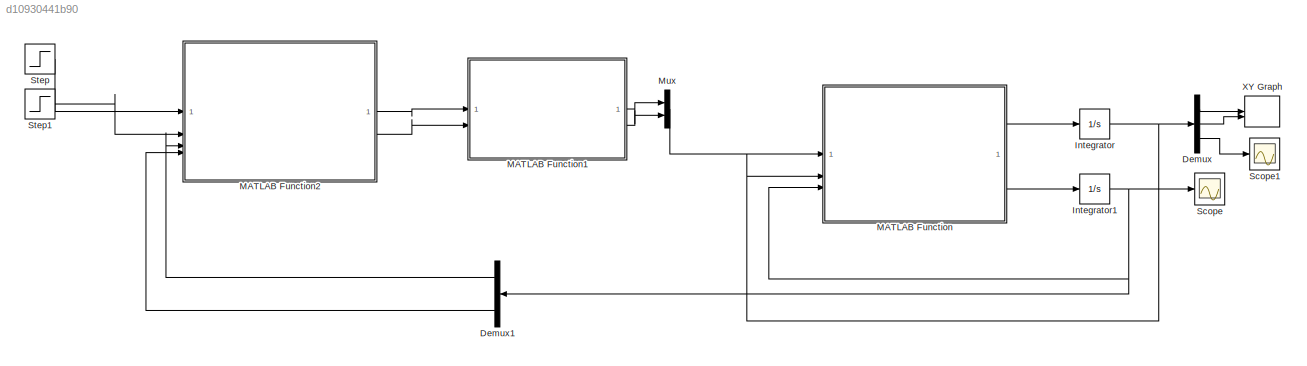
MODEL slx_d10930441b90
KIND model
CONFIG AbsTol = 1e-6
CONFIG EnableMultiTasking = off
CONFIG FixedStep = auto
CONFIG MaxStep = auto
CONFIG MinStep = auto
CONFIG RelTol = 1e-4
CONFIG SampleTimeConstraint = Unconstrained
CONFIG SolverName = ode45
CONFIG StartTime = 0.0
CONFIG StopTime = 1000
BLOCK [Demux] Demux
  Outputs = 3
BLOCK [Demux] Demux1
  NameLocation = top
  Outputs = 3
BLOCK [Integrator] Integrator
  InitialCondition = [0.001; 0.001; 0.001]
BLOCK [Integrator] Integrator1
  InitialCondition = [0.001; 0.001; 0.001]
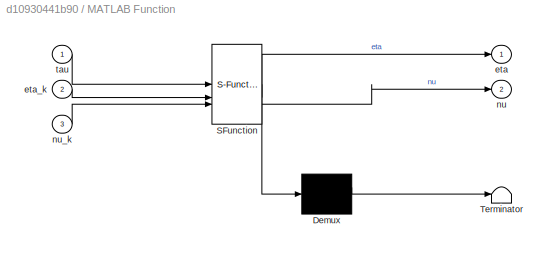
BLOCK [SubSystem] MATLAB Function
  ErrorFcn = Stateflow.Translate.translate
  PermitHierarchicalResolution = ExplicitOnly
  SFBlockType = MATLAB Function
  TreatAsAtomicUnit = on
BLOCK [Demux] MATLAB Function/ Demux 
  Outputs = 1
BLOCK [S-Function] MATLAB Function/ SFunction 
  EnableBusSupport = off
  FunctionName = sf_sfun
  PortCounts = [3 3]
  SFcnIsStateOwnerBlock = off
  SFunctionDeploymentMode = off
  Tag = Stateflow S-Function 2
BLOCK [Terminator] MATLAB Function/ Terminator 
BLOCK [Outport] MATLAB Function/eta
BLOCK [Inport] MATLAB Function/eta_k
  Port = 2
BLOCK [Outport] MATLAB Function/nu
  Port = 2
BLOCK [Inport] MATLAB Function/nu_k
  Port = 3
BLOCK [Inport] MATLAB Function/tau
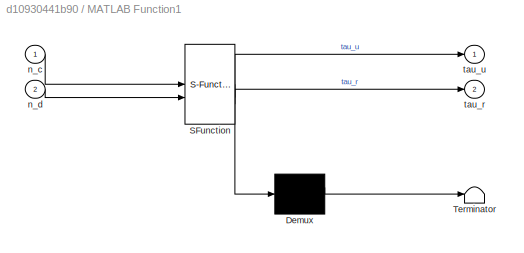
BLOCK [SubSystem] MATLAB Function1
  ErrorFcn = Stateflow.Translate.translate
  PermitHierarchicalResolution = ExplicitOnly
  SFBlockType = MATLAB Function
  TreatAsAtomicUnit = on
BLOCK [Demux] MATLAB Function1/ Demux 
  Outputs = 1
BLOCK [S-Function] MATLAB Function1/ SFunction 
  EnableBusSupport = off
  FunctionName = sf_sfun
  PortCounts = [2 3]
  SFcnIsStateOwnerBlock = off
  SFunctionDeploymentMode = off
  Tag = Stateflow S-Function 1
BLOCK [Terminator] MATLAB Function1/ Terminator 
BLOCK [Inport] MATLAB Function1/n_c
BLOCK [Inport] MATLAB Function1/n_d
  Port = 2
BLOCK [Outport] MATLAB Function1/tau_r
  Port = 2
BLOCK [Outport] MATLAB Function1/tau_u
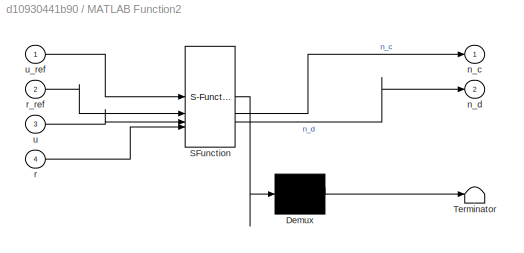
BLOCK [SubSystem] MATLAB Function2
  ErrorFcn = Stateflow.Translate.translate
  PermitHierarchicalResolution = ExplicitOnly
  SFBlockType = MATLAB Function
  TreatAsAtomicUnit = on
BLOCK [Demux] MATLAB Function2/ Demux 
  Outputs = 1
BLOCK [S-Function] MATLAB Function2/ SFunction 
  EnableBusSupport = off
  FunctionName = sf_sfun
  PortCounts = [4 3]
  SFcnIsStateOwnerBlock = off
  SFunctionDeploymentMode = off
  Tag = Stateflow S-Function 3
BLOCK [Terminator] MATLAB Function2/ Terminator 
BLOCK [Outport] MATLAB Function2/n_c
BLOCK [Outport] MATLAB Function2/n_d
  Port = 2
BLOCK [Inport] MATLAB Function2/r
  Port = 4
BLOCK [Inport] MATLAB Function2/r_ref
  Port = 2
BLOCK [Inport] MATLAB Function2/u
  Port = 3
BLOCK [Inport] MATLAB Function2/u_ref
BLOCK [Mux] Mux
  DisplayOption = bar
  Inputs = 2
BLOCK [Scope] Scope
  ActiveDisplayYMaximum = 1.3626376945694334
  ActiveDisplayYMinimum = -0.30627013477746645
  Floating = off
  GraphicalSettings = {"Style":{"BackgroundColor":[0.12941176470588237,0.12941176470588237,0.12941176470588237],"AxesColor":[0.07058823529411765,0.07058823529411765,0.07058823529411765],"LabelsColor":[0.8509803921568627,0.8509803921568627,0.8509803921568627],"PreserveColors":false,"Visible":[true,true,true],"LineStyle":["-","-","-"],"LineWidth":[1.5,1.5,1.5],"BarWidth":[0.9,0.9,0.9],"LineColor":["auto","auto","auto"],"...<+2265ch>
  MultipleDisplayCache = [{"MaxYLimMag":1.3626376945694334,"MaxYLimReal":1.3626376945694334,"MinYLimMag":0,"MinYLimReal":-0.30627013477746645,"PlotAsMagnitudePhase":false,"ShowGrid":true,"ShowLegend":false,"Title":"%<SignalLabel>","YLabel":""}]
  NumInputPorts = 1
  ScopeFrameLocation = window
  Visible = on
  WasSavedAsWebScope = on
  WindowPosition = [496.000000,206.000000,560.000000,420.000000,]
BLOCK [Scope] Scope1
  ActiveDisplayYMaximum = 67.257213810277847
  ActiveDisplayYMinimum = -7.4719126455864258
  DataLoggingVariableName = ScopeData1
  Floating = off
  GraphicalSettings = {"Style":{"BackgroundColor":[0.12941176470588237,0.12941176470588237,0.12941176470588237],"AxesColor":[0.07058823529411765,0.07058823529411765,0.07058823529411765],"LabelsColor":[0.8509803921568627,0.8509803921568627,0.8509803921568627],"PreserveColors":false,"Visible":[true],"LineStyle":["-"],"LineWidth":[1.5],"BarWidth":[0.9],"LineColor":["auto"],"LineFaceAlpha":[1],"LineEdgeAlpha":[1],"Marker":...<+1992ch>
  MultipleDisplayCache = [{"MaxYLimMag":67.257213810277847,"MaxYLimReal":67.257213810277847,"MinYLimMag":0,"MinYLimReal":-7.4719126455864258,"PlotAsMagnitudePhase":false,"ShowGrid":true,"ShowLegend":false,"Title":"%<SignalLabel>","YLabel":""}]
  NumInputPorts = 1
  ScopeFrameLocation = window
  Visible = on
  WasSavedAsWebScope = on
  WindowPosition = [488.000000,222.000000,560.000000,420.000000,]
BLOCK [Step] Step
  After = 2
  SampleTime = 0
BLOCK [Step] Step1
  After = 0.5
  SampleTime = 0
BLOCK [Record] XY Graph
  CompatibilityTag = XY
  FileSettingsInternal = {"entries":[{"content":{"excelSettings":{"content":{},"type":"Streamout.ExcelSettings"},"parquetSettings":{"content":{},"type":"Streamout.ParquetSettings"}},"type":"Streamout.FileSettingStorage","uuid":""}],"packageUris":["http:\/\/schema.mathworks.com\/mf0\/streamout_blocks\/R2020a"],"version":"1.0"}
  FrameSettings = [0, 0]
  Layout = [1 1]
  NumPorts = 2.0
  SignalsInternal = {"entries":[{"content":{"signals":[{"content":{"blockPath":[],"dimensions":[1],"domain":"","lineColor":"#a2142f","plots":[ 1 ],"port":1,"sid":[""],"signalID":1,"signalName":"Demux:1"},"type":"RecordBlkView.Signal","uuid":""},{"content":{"blockPath":[],"dimensions":[1],"domain":"","lineColor":"#139fff","plots":[ 1 ],"port":2,"sid":[""],"signalID":2,"signalName":"Demux:2"},"type":"RecordBlkView.Sign...<+160ch>
  VisualizationBindings = {"xyplotplugin":{"info":[{"series":[{"bindingParametersList":[{"parameter":"X-Axis","signalID":1,"signalName":"Demux:1"},{"parameter":"Y-Axis","signalID":2,"signalName":"Demux:2"}],"seriesID":0}],"subplotID":1}]}}
LINE Demux1:1 -> MATLAB Function2:3
LINE Demux1:3 -> MATLAB Function2:4
LINE Demux:1 -> XY Graph:1
LINE Demux:2 -> XY Graph:2
LINE Demux:3 -> Scope1:1
NET Integrator1:1 -> Demux1:1, MATLAB Function:3, Scope:1
NET Integrator:1 -> Demux:1, MATLAB Function:2
LINE MATLAB Function1:1 -> Mux:1
LINE MATLAB Function1:2 -> Mux:2
LINE MATLAB Function2:1 -> MATLAB Function1:1
LINE MATLAB Function2:2 -> MATLAB Function1:2
LINE MATLAB Function:1 -> Integrator:1
LINE MATLAB Function:2 -> Integrator1:1
LINE Mux:1 -> MATLAB Function:1
LINE Step1:1 -> MATLAB Function2:2
LINE Step:1 -> MATLAB Function2:1
note: NET lines group one-source signal fan-out (src -> all destinations, sorted); 1:1 wires keep LINE
CHART MATLAB Function1 states=1 transitions=1
  STATE_LABEL 'eML_blk_kernel()'
  STATE_LABEL 'SCRIPT:\nfunction [tau_u, tau_r] = Thruster_Model(n_c, n_d)\n%#codegen\n% Propulsión diferencial (dos MinnKota). n_c=(n1+n2)/2, n_d=(n1-n2)/2\n\n%% Geometría y fluido\nDp = 0.15;           % [m] diámetro hélice\nrho = 1025;          % [kg/m^3] agua de mar\nB   = 1.6;           % [m] manga del catamarán\nlever = B/2;         % [m] brazo de palanca yaw\n\n%% Coeficientes polinomiales KT(J) y KQ(J) (si solo usa...<+823ch>'
CHART MATLAB Function states=1 transitions=1
  STATE_LABEL 'eML_blk_kernel()'
  STATE_LABEL 'SCRIPT:\nfunction [eta, nu] = USV_EDSONJ_Plant(tau, eta_k, nu_k)\n% =========================================================================\n% Planta USV EDSON-J 3-DOF - CORREGIDO según matrices del artículo\n% =========================================================================\n% ENTRADAS:\n%   tau   : [2x1] = [tau_u; tau_r] → Fuerza surge y momento yaw\n%   eta_k : [3x1] = [x; y; psi]    → Esta...<+2112ch>'
CHART MATLAB Function2 states=1 transitions=1
  STATE_LABEL 'eML_blk_kernel()'
  STATE_LABEL 'SCRIPT:\nfunction [n_c, n_d] = Velocity_Controller_Backstepping(u_ref, r_ref, u, r)\n%#codegen\n% Backstepping básico en velocidades (surge/yaw).\n% Salida: n_c, n_d (rps) para alimentar Thruster_Model\n\n%% --- Parámetros (de la planta/propulsor) ---\n% Hidrodinámica (coincidir con planta)\nXu = -0.291;   Xuu = -27.626;\nNr = -741.195; Nrr = -262.791;\n\n% Hélice/fluido\nDp = 0.15;  rho = 1025;  a0 = 0.1884;...<+985ch>'
CHART  states=0 transitions=0
CHART  states=0 transitions=0
CHART  states=0 transitions=0
